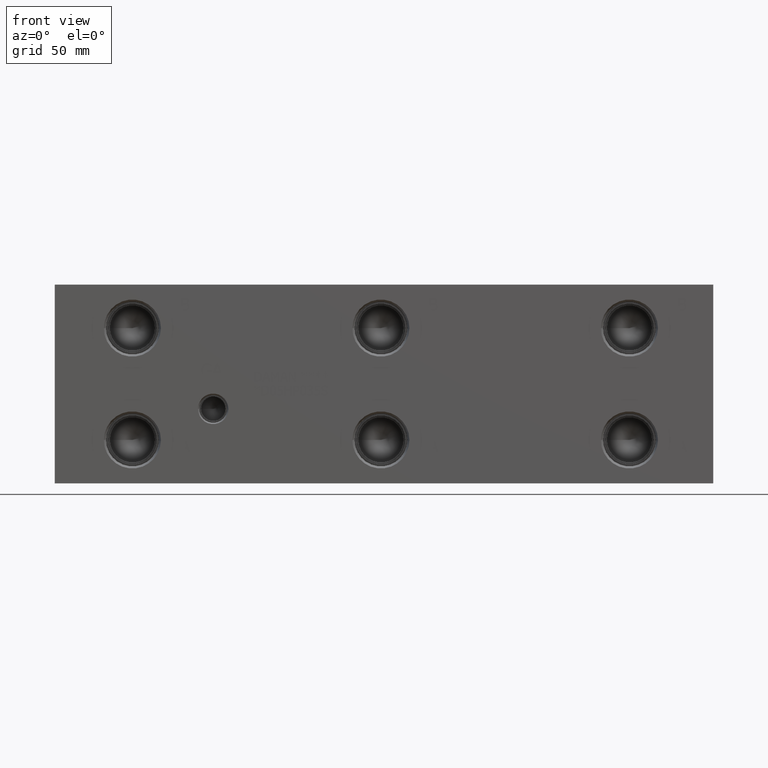
[diagram: clean part render]
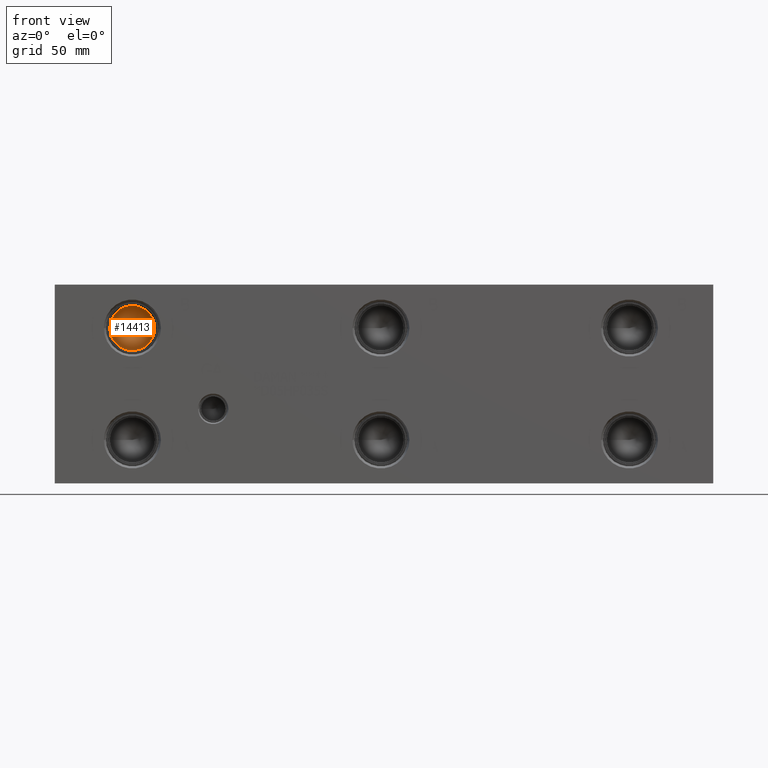
[diagram: same view with one face highlighted and labeled with its STEP entity id]
A machine part, front view. The second image highlights one B-rep face of the part: STEP entity #14413.
In plain terms, the highlighted conical surface has half-angle 60 deg.
Its self-contained STEP definition (entity closure, byte-faithful):
#46=CONICAL_SURFACE('',#15171,5.7531,1.0471975511966);
#539=CIRCLE('',#15172,11.5062);
#540=CIRCLE('',#15173,11.5062);
#1854=FACE_OUTER_BOUND('',#2688,.T.);
#2688=EDGE_LOOP('',(#12230,#12231,#12232,#12233));
#4040=LINE('',#24535,#5322);
#5322=VECTOR('',#17920,5.7531);
#6588=VERTEX_POINT('',#24531);
#6589=VERTEX_POINT('',#24532);
#6590=VERTEX_POINT('',#24534);
#8533=EDGE_CURVE('',#6588,#6589,#539,.T.);
#8534=EDGE_CURVE('',#6589,#6590,#4040,.T.);
#8535=EDGE_CURVE('',#6589,#6588,#540,.T.);
#12230=ORIENTED_EDGE('',*,*,#8533,.T.);
#12231=ORIENTED_EDGE('',*,*,#8534,.T.);
#12232=ORIENTED_EDGE('',*,*,#8534,.F.);
#12233=ORIENTED_EDGE('',*,*,#8535,.T.);
#14413=ADVANCED_FACE('',(#1854),#46,.F.);
#15171=AXIS2_PLACEMENT_3D('',#24530,#17916,#17917);
#15172=AXIS2_PLACEMENT_3D('',#24533,#17918,#17919);
#15173=AXIS2_PLACEMENT_3D('',#24536,#17921,#17922);
#17916=DIRECTION('center_axis',(0.,-1.,0.));
#17917=DIRECTION('ref_axis',(1.,0.,0.));
#17918=DIRECTION('center_axis',(0.,-1.,0.));
#17919=DIRECTION('ref_axis',(1.,0.,0.));
#17920=DIRECTION('',(0.866025403784439,0.5,1.06057523872491E-16));
#17921=DIRECTION('center_axis',(0.,-1.,0.));
#17922=DIRECTION('ref_axis',(1.,0.,0.));
#24530=CARTESIAN_POINT('Origin',(39.6748,34.1885438336748,79.375));
#24531=CARTESIAN_POINT('',(51.181,30.86699,79.375));
#24532=CARTESIAN_POINT('',(28.1686,30.86699,79.375));
#24533=CARTESIAN_POINT('Origin',(39.6748,30.86699,79.375));
#24534=CARTESIAN_POINT('',(39.6748,37.5100976673497,79.375));
#24535=CARTESIAN_POINT('',(33.9217,34.1885438336748,79.375));
#24536=CARTESIAN_POINT('Origin',(39.6748,30.86699,79.375));